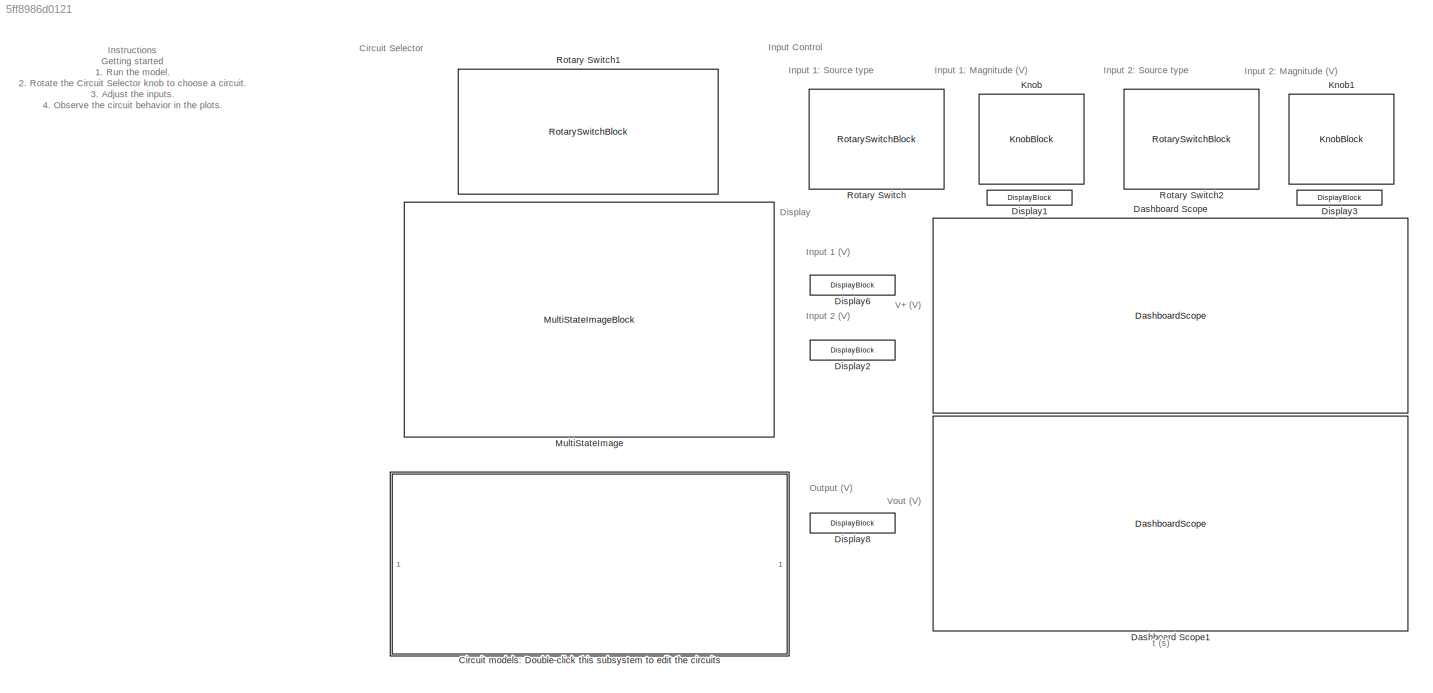
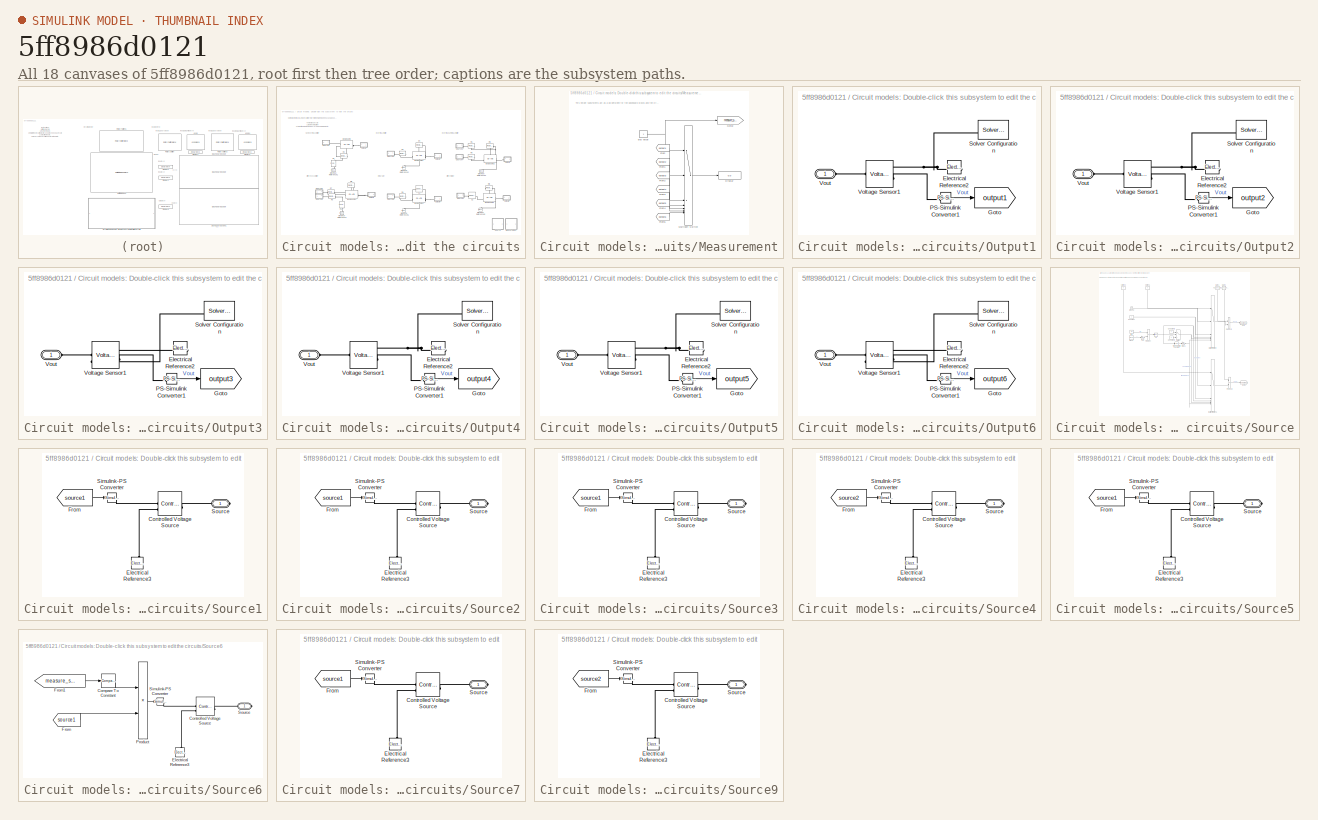
[diagram: thumbnail index - all 18 canvases of the model, root first then tree order]
MODEL slx_5ff8986d0121
KIND model
CONFIG AbsTol = auto
CONFIG EnableMultiTasking = off
CONFIG FixedStep = auto
CONFIG MaxStep = 1e-5
CONFIG MinStep = auto
CONFIG RelTol = 1e-3
CONFIG SampleTimeConstraint = Unconstrained
CONFIG SolverName = VariableStepAuto
CONFIG StartTime = 0.0
CONFIG StopTime = inf
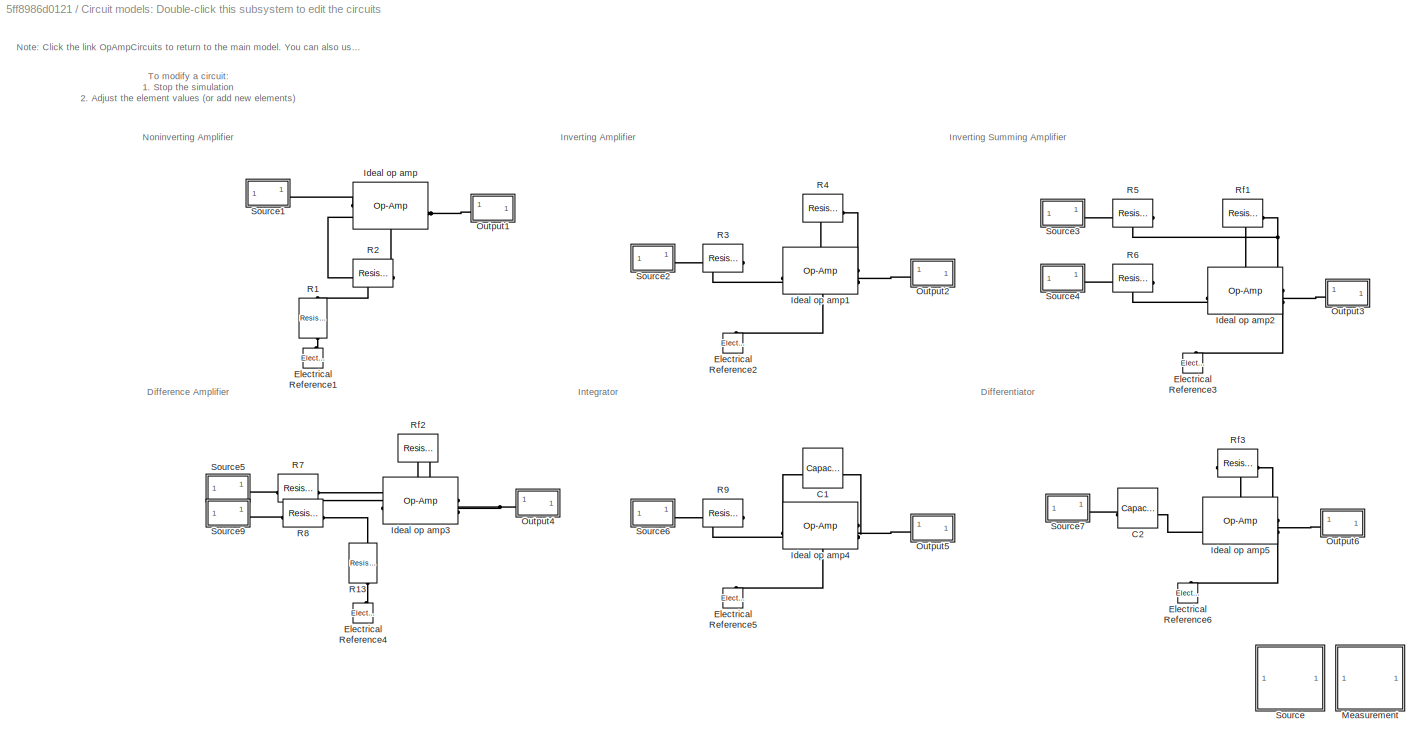
BLOCK [SubSystem] Circuit models: Double-click this subsystem to edit the circuits
  NameLocation = top
BLOCK [Reference] Circuit models: Double-click this subsystem to edit the circuits/C1  REF=fl_lib/Electrical/Electrical Elements/Capacitor
  AttributesFormatString = %<c> %<c_unit>
  NameLocation = top
  SourceBlock = fl_lib/Electrical/Electrical Elements/Capacitor
  SourceType = Capacitor
BLOCK [Reference] Circuit models: Double-click this subsystem to edit the circuits/C2  REF=fl_lib/Electrical/Electrical Elements/Capacitor
  AttributesFormatString = %<c> %<c_unit>
  NameLocation = top
  SourceBlock = fl_lib/Electrical/Electrical Elements/Capacitor
  SourceType = Capacitor
BLOCK [Reference] Circuit models: Double-click this subsystem to edit the circuits/Electrical Reference1  REF=fl_lib/Electrical/Electrical Elements/Electrical Reference
  NameLocation = right
  SourceBlock = fl_lib/Electrical/Electrical Elements/Electrical Reference
  SourceType = Electrical Reference
BLOCK [Reference] Circuit models: Double-click this subsystem to edit the circuits/Electrical Reference2  REF=fl_lib/Electrical/Electrical Elements/Electrical Reference
  NameLocation = right
  SourceBlock = fl_lib/Electrical/Electrical Elements/Electrical Reference
  SourceType = Electrical Reference
BLOCK [Reference] Circuit models: Double-click this subsystem to edit the circuits/Electrical Reference3  REF=fl_lib/Electrical/Electrical Elements/Electrical Reference
  NameLocation = right
  SourceBlock = fl_lib/Electrical/Electrical Elements/Electrical Reference
  SourceType = Electrical Reference
BLOCK [Reference] Circuit models: Double-click this subsystem to edit the circuits/Electrical Reference4  REF=fl_lib/Electrical/Electrical Elements/Electrical Reference
  NameLocation = right
  SourceBlock = fl_lib/Electrical/Electrical Elements/Electrical Reference
  SourceType = Electrical Reference
BLOCK [Reference] Circuit models: Double-click this subsystem to edit the circuits/Electrical Reference5  REF=fl_lib/Electrical/Electrical Elements/Electrical Reference
  NameLocation = right
  SourceBlock = fl_lib/Electrical/Electrical Elements/Electrical Reference
  SourceType = Electrical Reference
BLOCK [Reference] Circuit models: Double-click this subsystem to edit the circuits/Electrical Reference6  REF=fl_lib/Electrical/Electrical Elements/Electrical Reference
  NameLocation = right
  SourceBlock = fl_lib/Electrical/Electrical Elements/Electrical Reference
  SourceType = Electrical Reference
BLOCK [Reference] Circuit models: Double-click this subsystem to edit the circuits/Ideal op amp  REF=fl_lib/Electrical/Electrical Elements/Op-Amp
  SourceBlock = fl_lib/Electrical/Electrical Elements/Op-Amp
  SourceType = Op-Amp
BLOCK [Reference] Circuit models: Double-click this subsystem to edit the circuits/Ideal op amp1  REF=fl_lib/Electrical/Electrical Elements/Op-Amp
  SourceBlock = fl_lib/Electrical/Electrical Elements/Op-Amp
  SourceType = Op-Amp
BLOCK [Reference] Circuit models: Double-click this subsystem to edit the circuits/Ideal op amp2  REF=fl_lib/Electrical/Electrical Elements/Op-Amp
  SourceBlock = fl_lib/Electrical/Electrical Elements/Op-Amp
  SourceType = Op-Amp
BLOCK [Reference] Circuit models: Double-click this subsystem to edit the circuits/Ideal op amp3  REF=fl_lib/Electrical/Electrical Elements/Op-Amp
  SourceBlock = fl_lib/Electrical/Electrical Elements/Op-Amp
  SourceType = Op-Amp
BLOCK [Reference] Circuit models: Double-click this subsystem to edit the circuits/Ideal op amp4  REF=fl_lib/Electrical/Electrical Elements/Op-Amp
  SourceBlock = fl_lib/Electrical/Electrical Elements/Op-Amp
  SourceType = Op-Amp
BLOCK [Reference] Circuit models: Double-click this subsystem to edit the circuits/Ideal op amp5  REF=fl_lib/Electrical/Electrical Elements/Op-Amp
  SourceBlock = fl_lib/Electrical/Electrical Elements/Op-Amp
  SourceType = Op-Amp
BLOCK [SubSystem] Circuit models: Double-click this subsystem to edit the circuits/Measurement
BLOCK [Display] Circuit models: Double-click this subsystem to edit the circuits/Measurement/Display
  Decimation = 1
BLOCK [From] Circuit models: Double-click this subsystem to edit the circuits/Measurement/From
  GotoTag = output1
  TagVisibility = global
BLOCK [From] Circuit models: Double-click this subsystem to edit the circuits/Measurement/From1
  GotoTag = output2
  TagVisibility = global
BLOCK [From] Circuit models: Double-click this subsystem to edit the circuits/Measurement/From2
  GotoTag = output3
  TagVisibility = global
BLOCK [From] Circuit models: Double-click this subsystem to edit the circuits/Measurement/From3
  GotoTag = output4
  TagVisibility = global
BLOCK [From] Circuit models: Double-click this subsystem to edit the circuits/Measurement/From4
  GotoTag = output5
  TagVisibility = global
BLOCK [From] Circuit models: Double-click this subsystem to edit the circuits/Measurement/From5
  GotoTag = output6
  TagVisibility = global
BLOCK [Goto] Circuit models: Double-click this subsystem to edit the circuits/Measurement/Goto2
  GotoTag = measure_switch
  TagVisibility = global
BLOCK [MultiPortSwitch] Circuit models: Double-click this subsystem to edit the circuits/Measurement/Multiport Switch
  InputSameDT = off
  Inputs = 6
  SaturateOnIntegerOverflow = off
BLOCK [Constant] Circuit models: Double-click this subsystem to edit the circuits/Measurement/dial value
BLOCK [SubSystem] Circuit models: Double-click this subsystem to edit the circuits/Output1
BLOCK [Reference] Circuit models: Double-click this subsystem to edit the circuits/Output1/Electrical Reference2  REF=fl_lib/Electrical/Electrical Elements/Electrical Reference
  NameLocation = top
  SourceBlock = fl_lib/Electrical/Electrical Elements/Electrical Reference
  SourceType = Electrical Reference
BLOCK [Goto] Circuit models: Double-click this subsystem to edit the circuits/Output1/Goto
  GotoTag = output1
  TagVisibility = global
BLOCK [Reference] Circuit models: Double-click this subsystem to edit the circuits/Output1/PS-Simulink Converter1  REF=nesl_utility/PS-Simulink
Converter
  SourceBlock = nesl_utility/PS-Simulink\nConverter
  SourceType = PS-Simulink\nConverter
BLOCK [Reference] Circuit models: Double-click this subsystem to edit the circuits/Output1/Solver Configuration  REF=nesl_utility/Solver
Configuration
  NameLocation = top
  SourceBlock = nesl_utility/Solver\nConfiguration
  SourceType = Solver\nConfiguration
BLOCK [Reference] Circuit models: Double-click this subsystem to edit the circuits/Output1/Voltage Sensor1  REF=fl_lib/Electrical/Electrical Sensors/Voltage Sensor
  NameLocation = top
  SourceBlock = fl_lib/Electrical/Electrical Sensors/Voltage Sensor
  SourceType = Voltage Sensor
BLOCK [PMIOPort] Circuit models: Double-click this subsystem to edit the circuits/Output1/Vout
  Side = Left
BLOCK [SubSystem] Circuit models: Double-click this subsystem to edit the circuits/Output2
BLOCK [Reference] Circuit models: Double-click this subsystem to edit the circuits/Output2/Electrical Reference2  REF=fl_lib/Electrical/Electrical Elements/Electrical Reference
  NameLocation = top
  SourceBlock = fl_lib/Electrical/Electrical Elements/Electrical Reference
  SourceType = Electrical Reference
BLOCK [Goto] Circuit models: Double-click this subsystem to edit the circuits/Output2/Goto
  GotoTag = output2
  TagVisibility = global
BLOCK [Reference] Circuit models: Double-click this subsystem to edit the circuits/Output2/PS-Simulink Converter1  REF=nesl_utility/PS-Simulink
Converter
  SourceBlock = nesl_utility/PS-Simulink\nConverter
  SourceType = PS-Simulink\nConverter
BLOCK [Reference] Circuit models: Double-click this subsystem to edit the circuits/Output2/Solver Configuration  REF=nesl_utility/Solver
Configuration
  NameLocation = top
  SourceBlock = nesl_utility/Solver\nConfiguration
  SourceType = Solver\nConfiguration
BLOCK [Reference] Circuit models: Double-click this subsystem to edit the circuits/Output2/Voltage Sensor1  REF=fl_lib/Electrical/Electrical Sensors/Voltage Sensor
  NameLocation = top
  SourceBlock = fl_lib/Electrical/Electrical Sensors/Voltage Sensor
  SourceType = Voltage Sensor
BLOCK [PMIOPort] Circuit models: Double-click this subsystem to edit the circuits/Output2/Vout
  Side = Left
BLOCK [SubSystem] Circuit models: Double-click this subsystem to edit the circuits/Output3
BLOCK [Reference] Circuit models: Double-click this subsystem to edit the circuits/Output3/Electrical Reference2  REF=fl_lib/Electrical/Electrical Elements/Electrical Reference
  NameLocation = top
  SourceBlock = fl_lib/Electrical/Electrical Elements/Electrical Reference
  SourceType = Electrical Reference
BLOCK [Goto] Circuit models: Double-click this subsystem to edit the circuits/Output3/Goto
  GotoTag = output3
  TagVisibility = global
BLOCK [Reference] Circuit models: Double-click this subsystem to edit the circuits/Output3/PS-Simulink Converter1  REF=nesl_utility/PS-Simulink
Converter
  SourceBlock = nesl_utility/PS-Simulink\nConverter
  SourceType = PS-Simulink\nConverter
BLOCK [Reference] Circuit models: Double-click this subsystem to edit the circuits/Output3/Solver Configuration  REF=nesl_utility/Solver
Configuration
  NameLocation = top
  SourceBlock = nesl_utility/Solver\nConfiguration
  SourceType = Solver\nConfiguration
BLOCK [Reference] Circuit models: Double-click this subsystem to edit the circuits/Output3/Voltage Sensor1  REF=fl_lib/Electrical/Electrical Sensors/Voltage Sensor
  NameLocation = top
  SourceBlock = fl_lib/Electrical/Electrical Sensors/Voltage Sensor
  SourceType = Voltage Sensor
BLOCK [PMIOPort] Circuit models: Double-click this subsystem to edit the circuits/Output3/Vout
  Side = Left
BLOCK [SubSystem] Circuit models: Double-click this subsystem to edit the circuits/Output4
BLOCK [Reference] Circuit models: Double-click this subsystem to edit the circuits/Output4/Electrical Reference2  REF=fl_lib/Electrical/Electrical Elements/Electrical Reference
  NameLocation = top
  SourceBlock = fl_lib/Electrical/Electrical Elements/Electrical Reference
  SourceType = Electrical Reference
BLOCK [Goto] Circuit models: Double-click this subsystem to edit the circuits/Output4/Goto
  GotoTag = output4
  TagVisibility = global
BLOCK [Reference] Circuit models: Double-click this subsystem to edit the circuits/Output4/PS-Simulink Converter1  REF=nesl_utility/PS-Simulink
Converter
  SourceBlock = nesl_utility/PS-Simulink\nConverter
  SourceType = PS-Simulink\nConverter
BLOCK [Reference] Circuit models: Double-click this subsystem to edit the circuits/Output4/Solver Configuration  REF=nesl_utility/Solver
Configuration
  NameLocation = top
  SourceBlock = nesl_utility/Solver\nConfiguration
  SourceType = Solver\nConfiguration
BLOCK [Reference] Circuit models: Double-click this subsystem to edit the circuits/Output4/Voltage Sensor1  REF=fl_lib/Electrical/Electrical Sensors/Voltage Sensor
  NameLocation = top
  SourceBlock = fl_lib/Electrical/Electrical Sensors/Voltage Sensor
  SourceType = Voltage Sensor
BLOCK [PMIOPort] Circuit models: Double-click this subsystem to edit the circuits/Output4/Vout
  Side = Left
BLOCK [SubSystem] Circuit models: Double-click this subsystem to edit the circuits/Output5
BLOCK [Reference] Circuit models: Double-click this subsystem to edit the circuits/Output5/Electrical Reference2  REF=fl_lib/Electrical/Electrical Elements/Electrical Reference
  NameLocation = top
  SourceBlock = fl_lib/Electrical/Electrical Elements/Electrical Reference
  SourceType = Electrical Reference
BLOCK [Goto] Circuit models: Double-click this subsystem to edit the circuits/Output5/Goto
  GotoTag = output5
  TagVisibility = global
BLOCK [Reference] Circuit models: Double-click this subsystem to edit the circuits/Output5/PS-Simulink Converter1  REF=nesl_utility/PS-Simulink
Converter
  SourceBlock = nesl_utility/PS-Simulink\nConverter
  SourceType = PS-Simulink\nConverter
BLOCK [Reference] Circuit models: Double-click this subsystem to edit the circuits/Output5/Solver Configuration  REF=nesl_utility/Solver
Configuration
  NameLocation = top
  SourceBlock = nesl_utility/Solver\nConfiguration
  SourceType = Solver\nConfiguration
BLOCK [Reference] Circuit models: Double-click this subsystem to edit the circuits/Output5/Voltage Sensor1  REF=fl_lib/Electrical/Electrical Sensors/Voltage Sensor
  NameLocation = top
  SourceBlock = fl_lib/Electrical/Electrical Sensors/Voltage Sensor
  SourceType = Voltage Sensor
BLOCK [PMIOPort] Circuit models: Double-click this subsystem to edit the circuits/Output5/Vout
  Side = Left
BLOCK [SubSystem] Circuit models: Double-click this subsystem to edit the circuits/Output6
BLOCK [Reference] Circuit models: Double-click this subsystem to edit the circuits/Output6/Electrical Reference2  REF=fl_lib/Electrical/Electrical Elements/Electrical Reference
  NameLocation = top
  SourceBlock = fl_lib/Electrical/Electrical Elements/Electrical Reference
  SourceType = Electrical Reference
BLOCK [Goto] Circuit models: Double-click this subsystem to edit the circuits/Output6/Goto
  GotoTag = output6
  TagVisibility = global
BLOCK [Reference] Circuit models: Double-click this subsystem to edit the circuits/Output6/PS-Simulink Converter1  REF=nesl_utility/PS-Simulink
Converter
  SourceBlock = nesl_utility/PS-Simulink\nConverter
  SourceType = PS-Simulink\nConverter
BLOCK [Reference] Circuit models: Double-click this subsystem to edit the circuits/Output6/Solver Configuration  REF=nesl_utility/Solver
Configuration
  NameLocation = top
  SourceBlock = nesl_utility/Solver\nConfiguration
  SourceType = Solver\nConfiguration
BLOCK [Reference] Circuit models: Double-click this subsystem to edit the circuits/Output6/Voltage Sensor1  REF=fl_lib/Electrical/Electrical Sensors/Voltage Sensor
  NameLocation = top
  SourceBlock = fl_lib/Electrical/Electrical Sensors/Voltage Sensor
  SourceType = Voltage Sensor
BLOCK [PMIOPort] Circuit models: Double-click this subsystem to edit the circuits/Output6/Vout
  Side = Left
BLOCK [Reference] Circuit models: Double-click this subsystem to edit the circuits/R1  REF=fl_lib/Electrical/Electrical Elements/Resistor
  AttributesFormatString = %<R> %<R_unit>
  NameLocation = left
  SourceBlock = fl_lib/Electrical/Electrical Elements/Resistor
  SourceType = Resistor
BLOCK [Reference] Circuit models: Double-click this subsystem to edit the circuits/R13  REF=fl_lib/Electrical/Electrical Elements/Resistor
  AttributesFormatString = %<R> %<R_unit>
  NameLocation = right
  SourceBlock = fl_lib/Electrical/Electrical Elements/Resistor
  SourceType = Resistor
BLOCK [Reference] Circuit models: Double-click this subsystem to edit the circuits/R2  REF=fl_lib/Electrical/Electrical Elements/Resistor
  AttributesFormatString = %<R> %<R_unit>
  SourceBlock = fl_lib/Electrical/Electrical Elements/Resistor
  SourceType = Resistor
BLOCK [Reference] Circuit models: Double-click this subsystem to edit the circuits/R3  REF=fl_lib/Electrical/Electrical Elements/Resistor
  AttributesFormatString = %<R> %<R_unit>
  NameLocation = top
  SourceBlock = fl_lib/Electrical/Electrical Elements/Resistor
  SourceType = Resistor
BLOCK [Reference] Circuit models: Double-click this subsystem to edit the circuits/R4  REF=fl_lib/Electrical/Electrical Elements/Resistor
  AttributesFormatString = %<R> %<R_unit>
  NameLocation = top
  SourceBlock = fl_lib/Electrical/Electrical Elements/Resistor
  SourceType = Resistor
BLOCK [Reference] Circuit models: Double-click this subsystem to edit the circuits/R5  REF=fl_lib/Electrical/Electrical Elements/Resistor
  AttributesFormatString = %<R> %<R_unit>
  NameLocation = top
  SourceBlock = fl_lib/Electrical/Electrical Elements/Resistor
  SourceType = Resistor
BLOCK [Reference] Circuit models: Double-click this subsystem to edit the circuits/R6  REF=fl_lib/Electrical/Electrical Elements/Resistor
  AttributesFormatString = %<R> %<R_unit>
  SourceBlock = fl_lib/Electrical/Electrical Elements/Resistor
  SourceType = Resistor
BLOCK [Reference] Circuit models: Double-click this subsystem to edit the circuits/R7  REF=fl_lib/Electrical/Electrical Elements/Resistor
  AttributesFormatString = %<R> %<R_unit>
  NameLocation = top
  SourceBlock = fl_lib/Electrical/Electrical Elements/Resistor
  SourceType = Resistor
BLOCK [Reference] Circuit models: Double-click this subsystem to edit the circuits/R8  REF=fl_lib/Electrical/Electrical Elements/Resistor
  AttributesFormatString = %<R> %<R_unit>
  SourceBlock = fl_lib/Electrical/Electrical Elements/Resistor
  SourceType = Resistor
BLOCK [Reference] Circuit models: Double-click this subsystem to edit the circuits/R9  REF=fl_lib/Electrical/Electrical Elements/Resistor
  AttributesFormatString = %<R> %<R_unit>
  NameLocation = top
  SourceBlock = fl_lib/Electrical/Electrical Elements/Resistor
  SourceType = Resistor
BLOCK [Reference] Circuit models: Double-click this subsystem to edit the circuits/Rf1  REF=fl_lib/Electrical/Electrical Elements/Resistor
  AttributesFormatString = %<R> %<R_unit>
  NameLocation = top
  SourceBlock = fl_lib/Electrical/Electrical Elements/Resistor
  SourceType = Resistor
BLOCK [Reference] Circuit models: Double-click this subsystem to edit the circuits/Rf2  REF=fl_lib/Electrical/Electrical Elements/Resistor
  AttributesFormatString = %<R> %<R_unit>
  NameLocation = top
  SourceBlock = fl_lib/Electrical/Electrical Elements/Resistor
  SourceType = Resistor
BLOCK [Reference] Circuit models: Double-click this subsystem to edit the circuits/Rf3  REF=fl_lib/Electrical/Electrical Elements/Resistor
  AttributesFormatString = %<R> %<R_unit>
  NameLocation = top
  SourceBlock = fl_lib/Electrical/Electrical Elements/Resistor
  SourceType = Resistor
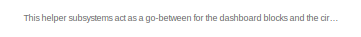
[diagram: Circuit models: Double-click this subsystem to edit the circuits/Source - part 1/3, top left region]
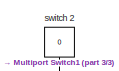
[diagram: Circuit models: Double-click this subsystem to edit the circuits/Source - part 2/3, top left region]
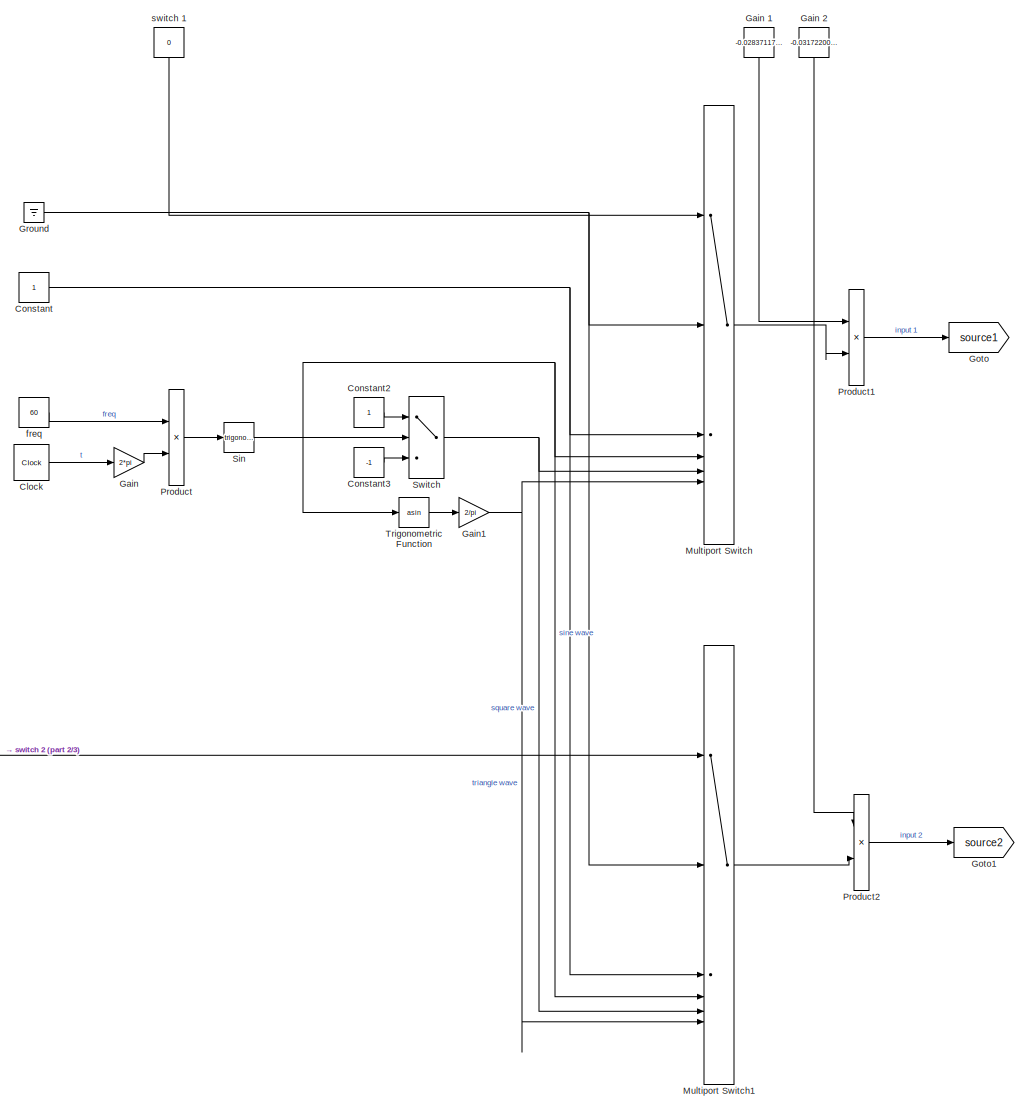
[diagram: Circuit models: Double-click this subsystem to edit the circuits/Source - part 3/3, most of the canvas]
BLOCK [SubSystem] Circuit models: Double-click this subsystem to edit the circuits/Source
BLOCK [Clock] Circuit models: Double-click this subsystem to edit the circuits/Source/Clock
BLOCK [Constant] Circuit models: Double-click this subsystem to edit the circuits/Source/Constant
BLOCK [Constant] Circuit models: Double-click this subsystem to edit the circuits/Source/Constant2
  SampleTime = 0
BLOCK [Constant] Circuit models: Double-click this subsystem to edit the circuits/Source/Constant3
  SampleTime = 0
  Value = -1
BLOCK [Gain] Circuit models: Double-click this subsystem to edit the circuits/Source/Gain
  Gain = 2*pi
BLOCK [Constant] Circuit models: Double-click this subsystem to edit the circuits/Source/Gain 1
  NameLocation = top
  Value = -0.02837117513020848
BLOCK [Constant] Circuit models: Double-click this subsystem to edit the circuits/Source/Gain 2
  NameLocation = top
  Value = -0.03172200520833313
BLOCK [Gain] Circuit models: Double-click this subsystem to edit the circuits/Source/Gain1
  Gain = 2/pi
BLOCK [Goto] Circuit models: Double-click this subsystem to edit the circuits/Source/Goto
  GotoTag = source1
  TagVisibility = global
BLOCK [Goto] Circuit models: Double-click this subsystem to edit the circuits/Source/Goto1
  GotoTag = source2
  TagVisibility = global
BLOCK [Ground] Circuit models: Double-click this subsystem to edit the circuits/Source/Ground
BLOCK [MultiPortSwitch] Circuit models: Double-click this subsystem to edit the circuits/Source/Multiport Switch
  DataPortOrder = Zero-based contiguous
  InputSameDT = off
  Inputs = 5
  SaturateOnIntegerOverflow = off
  zeroidx = on
BLOCK [MultiPortSwitch] Circuit models: Double-click this subsystem to edit the circuits/Source/Multiport Switch1
  DataPortOrder = Zero-based contiguous
  InputSameDT = off
  Inputs = 5
  SaturateOnIntegerOverflow = off
  zeroidx = on
BLOCK [Product] Circuit models: Double-click this subsystem to edit the circuits/Source/Product
BLOCK [Product] Circuit models: Double-click this subsystem to edit the circuits/Source/Product1
BLOCK [Product] Circuit models: Double-click this subsystem to edit the circuits/Source/Product2
BLOCK [Trigonometry] Circuit models: Double-click this subsystem to edit the circuits/Source/Sin
BLOCK [Switch] Circuit models: Double-click this subsystem to edit the circuits/Source/Switch
  Criteria = u2 > Threshold
  InputSameDT = off
  SaturateOnIntegerOverflow = off
BLOCK [Trigonometry] Circuit models: Double-click this subsystem to edit the circuits/Source/Trigonometric Function
  Operator = asin
BLOCK [Constant] Circuit models: Double-click this subsystem to edit the circuits/Source/freq
  NameLocation = left
  SampleTime = 0
  Value = 60
BLOCK [Constant] Circuit models: Double-click this subsystem to edit the circuits/Source/switch 1
  NameLocation = top
  Value = 0
BLOCK [Constant] Circuit models: Double-click this subsystem to edit the circuits/Source/switch 2
  NameLocation = top
  Value = 0
BLOCK [SubSystem] Circuit models: Double-click this subsystem to edit the circuits/Source1
BLOCK [Reference] Circuit models: Double-click this subsystem to edit the circuits/Source1/Controlled Voltage Source  REF=fl_lib/Electrical/Electrical Sources/Controlled Voltage
Source
  NameLocation = top
  SourceBlock = fl_lib/Electrical/Electrical Sources/Controlled Voltage\nSource
  SourceType = Controlled Voltage\nSource
BLOCK [Reference] Circuit models: Double-click this subsystem to edit the circuits/Source1/Electrical Reference3  REF=fl_lib/Electrical/Electrical Elements/Electrical Reference
  NameLocation = right
  SourceBlock = fl_lib/Electrical/Electrical Elements/Electrical Reference
  SourceType = Electrical Reference
BLOCK [From] Circuit models: Double-click this subsystem to edit the circuits/Source1/From
  GotoTag = source1
  TagVisibility = global
BLOCK [Reference] Circuit models: Double-click this subsystem to edit the circuits/Source1/Simulink-PS Converter  REF=nesl_utility/Simulink-PS
Converter
  SourceBlock = nesl_utility/Simulink-PS\nConverter
  SourceType = Simulink-PS\nConverter
BLOCK [PMIOPort] Circuit models: Double-click this subsystem to edit the circuits/Source1/Source
  Side = Right
BLOCK [SubSystem] Circuit models: Double-click this subsystem to edit the circuits/Source2
BLOCK [Reference] Circuit models: Double-click this subsystem to edit the circuits/Source2/Controlled Voltage Source  REF=fl_lib/Electrical/Electrical Sources/Controlled Voltage
Source
  NameLocation = top
  SourceBlock = fl_lib/Electrical/Electrical Sources/Controlled Voltage\nSource
  SourceType = Controlled Voltage\nSource
BLOCK [Reference] Circuit models: Double-click this subsystem to edit the circuits/Source2/Electrical Reference3  REF=fl_lib/Electrical/Electrical Elements/Electrical Reference
  NameLocation = right
  SourceBlock = fl_lib/Electrical/Electrical Elements/Electrical Reference
  SourceType = Electrical Reference
BLOCK [From] Circuit models: Double-click this subsystem to edit the circuits/Source2/From
  GotoTag = source1
  TagVisibility = global
BLOCK [Reference] Circuit models: Double-click this subsystem to edit the circuits/Source2/Simulink-PS Converter  REF=nesl_utility/Simulink-PS
Converter
  SourceBlock = nesl_utility/Simulink-PS\nConverter
  SourceType = Simulink-PS\nConverter
BLOCK [PMIOPort] Circuit models: Double-click this subsystem to edit the circuits/Source2/Source
  Side = Right
BLOCK [SubSystem] Circuit models: Double-click this subsystem to edit the circuits/Source3
BLOCK [Reference] Circuit models: Double-click this subsystem to edit the circuits/Source3/Controlled Voltage Source  REF=fl_lib/Electrical/Electrical Sources/Controlled Voltage
Source
  NameLocation = top
  SourceBlock = fl_lib/Electrical/Electrical Sources/Controlled Voltage\nSource
  SourceType = Controlled Voltage\nSource
BLOCK [Reference] Circuit models: Double-click this subsystem to edit the circuits/Source3/Electrical Reference3  REF=fl_lib/Electrical/Electrical Elements/Electrical Reference
  NameLocation = right
  SourceBlock = fl_lib/Electrical/Electrical Elements/Electrical Reference
  SourceType = Electrical Reference
BLOCK [From] Circuit models: Double-click this subsystem to edit the circuits/Source3/From
  GotoTag = source1
  TagVisibility = global
BLOCK [Reference] Circuit models: Double-click this subsystem to edit the circuits/Source3/Simulink-PS Converter  REF=nesl_utility/Simulink-PS
Converter
  SourceBlock = nesl_utility/Simulink-PS\nConverter
  SourceType = Simulink-PS\nConverter
BLOCK [PMIOPort] Circuit models: Double-click this subsystem to edit the circuits/Source3/Source
  Side = Right
BLOCK [SubSystem] Circuit models: Double-click this subsystem to edit the circuits/Source4
BLOCK [Reference] Circuit models: Double-click this subsystem to edit the circuits/Source4/Controlled Voltage Source  REF=fl_lib/Electrical/Electrical Sources/Controlled Voltage
Source
  NameLocation = top
  SourceBlock = fl_lib/Electrical/Electrical Sources/Controlled Voltage\nSource
  SourceType = Controlled Voltage\nSource
BLOCK [Reference] Circuit models: Double-click this subsystem to edit the circuits/Source4/Electrical Reference3  REF=fl_lib/Electrical/Electrical Elements/Electrical Reference
  NameLocation = right
  SourceBlock = fl_lib/Electrical/Electrical Elements/Electrical Reference
  SourceType = Electrical Reference
BLOCK [From] Circuit models: Double-click this subsystem to edit the circuits/Source4/From
  GotoTag = source2
  TagVisibility = global
BLOCK [Reference] Circuit models: Double-click this subsystem to edit the circuits/Source4/Simulink-PS Converter  REF=nesl_utility/Simulink-PS
Converter
  SourceBlock = nesl_utility/Simulink-PS\nConverter
  SourceType = Simulink-PS\nConverter
BLOCK [PMIOPort] Circuit models: Double-click this subsystem to edit the circuits/Source4/Source
  Side = Right
BLOCK [SubSystem] Circuit models: Double-click this subsystem to edit the circuits/Source5
BLOCK [Reference] Circuit models: Double-click this subsystem to edit the circuits/Source5/Controlled Voltage Source  REF=fl_lib/Electrical/Electrical Sources/Controlled Voltage
Source
  NameLocation = top
  SourceBlock = fl_lib/Electrical/Electrical Sources/Controlled Voltage\nSource
  SourceType = Controlled Voltage\nSource
BLOCK [Reference] Circuit models: Double-click this subsystem to edit the circuits/Source5/Electrical Reference3  REF=fl_lib/Electrical/Electrical Elements/Electrical Reference
  NameLocation = right
  SourceBlock = fl_lib/Electrical/Electrical Elements/Electrical Reference
  SourceType = Electrical Reference
BLOCK [From] Circuit models: Double-click this subsystem to edit the circuits/Source5/From
  GotoTag = source1
  TagVisibility = global
BLOCK [Reference] Circuit models: Double-click this subsystem to edit the circuits/Source5/Simulink-PS Converter  REF=nesl_utility/Simulink-PS
Converter
  SourceBlock = nesl_utility/Simulink-PS\nConverter
  SourceType = Simulink-PS\nConverter
BLOCK [PMIOPort] Circuit models: Double-click this subsystem to edit the circuits/Source5/Source
  Side = Right
BLOCK [SubSystem] Circuit models: Double-click this subsystem to edit the circuits/Source6
BLOCK [Reference] Circuit models: Double-click this subsystem to edit the circuits/Source6/Compare To Constant  REF=simulink/Logic and Bit
Operations/Compare
To Constant
  SourceBlock = simulink/Logic and Bit\nOperations/Compare\nTo Constant
  SourceType = Compare To Constant
BLOCK [Reference] Circuit models: Double-click this subsystem to edit the circuits/Source6/Controlled Voltage Source  REF=fl_lib/Electrical/Electrical Sources/Controlled Voltage
Source
  NameLocation = top
  SourceBlock = fl_lib/Electrical/Electrical Sources/Controlled Voltage\nSource
  SourceType = Controlled Voltage\nSource
BLOCK [Reference] Circuit models: Double-click this subsystem to edit the circuits/Source6/Electrical Reference3  REF=fl_lib/Electrical/Electrical Elements/Electrical Reference
  NameLocation = right
  SourceBlock = fl_lib/Electrical/Electrical Elements/Electrical Reference
  SourceType = Electrical Reference
BLOCK [From] Circuit models: Double-click this subsystem to edit the circuits/Source6/From
  GotoTag = source1
  TagVisibility = global
BLOCK [From] Circuit models: Double-click this subsystem to edit the circuits/Source6/From1
  GotoTag = measure_switch
  TagVisibility = global
BLOCK [Product] Circuit models: Double-click this subsystem to edit the circuits/Source6/Product
BLOCK [Reference] Circuit models: Double-click this subsystem to edit the circuits/Source6/Simulink-PS Converter  REF=nesl_utility/Simulink-PS
Converter
  SourceBlock = nesl_utility/Simulink-PS\nConverter
  SourceType = Simulink-PS\nConverter
BLOCK [PMIOPort] Circuit models: Double-click this subsystem to edit the circuits/Source6/Source
  Side = Right
BLOCK [SubSystem] Circuit models: Double-click this subsystem to edit the circuits/Source7
BLOCK [Reference] Circuit models: Double-click this subsystem to edit the circuits/Source7/Controlled Voltage Source  REF=fl_lib/Electrical/Electrical Sources/Controlled Voltage
Source
  NameLocation = top
  SourceBlock = fl_lib/Electrical/Electrical Sources/Controlled Voltage\nSource
  SourceType = Controlled Voltage\nSource
BLOCK [Reference] Circuit models: Double-click this subsystem to edit the circuits/Source7/Electrical Reference3  REF=fl_lib/Electrical/Electrical Elements/Electrical Reference
  NameLocation = right
  SourceBlock = fl_lib/Electrical/Electrical Elements/Electrical Reference
  SourceType = Electrical Reference
BLOCK [From] Circuit models: Double-click this subsystem to edit the circuits/Source7/From
  GotoTag = source1
  TagVisibility = global
BLOCK [Reference] Circuit models: Double-click this subsystem to edit the circuits/Source7/Simulink-PS Converter  REF=nesl_utility/Simulink-PS
Converter
  SourceBlock = nesl_utility/Simulink-PS\nConverter
  SourceType = Simulink-PS\nConverter
BLOCK [PMIOPort] Circuit models: Double-click this subsystem to edit the circuits/Source7/Source
  Side = Right
BLOCK [SubSystem] Circuit models: Double-click this subsystem to edit the circuits/Source9
BLOCK [Reference] Circuit models: Double-click this subsystem to edit the circuits/Source9/Controlled Voltage Source  REF=fl_lib/Electrical/Electrical Sources/Controlled Voltage
Source
  NameLocation = top
  SourceBlock = fl_lib/Electrical/Electrical Sources/Controlled Voltage\nSource
  SourceType = Controlled Voltage\nSource
BLOCK [Reference] Circuit models: Double-click this subsystem to edit the circuits/Source9/Electrical Reference3  REF=fl_lib/Electrical/Electrical Elements/Electrical Reference
  NameLocation = right
  SourceBlock = fl_lib/Electrical/Electrical Elements/Electrical Reference
  SourceType = Electrical Reference
BLOCK [From] Circuit models: Double-click this subsystem to edit the circuits/Source9/From
  GotoTag = source2
  TagVisibility = global
BLOCK [Reference] Circuit models: Double-click this subsystem to edit the circuits/Source9/Simulink-PS Converter  REF=nesl_utility/Simulink-PS
Converter
  SourceBlock = nesl_utility/Simulink-PS\nConverter
  SourceType = Simulink-PS\nConverter
BLOCK [PMIOPort] Circuit models: Double-click this subsystem to edit the circuits/Source9/Source
  Side = Right
BLOCK [DashboardScope] Dashboard Scope
  ScaleAtStop = off
  TimeSpan = 0.10000000000000001
  Ymax = 11
  Ymin = -11
BLOCK [DashboardScope] Dashboard Scope1
  ScaleAtStop = off
  TimeSpan = 0.10000000000000001
  Ymax = 11
  Ymin = -11
BLOCK [DisplayBlock] Display1
  Alignment = Right
  Format = Custom
  FormatString = %0.4f
  LabelPosition = Hide
  Transparency = 1
BLOCK [DisplayBlock] Display2
  Alignment = Right
  Format = Custom
  FormatString = %0.4f
  LabelPosition = Hide
  Transparency = 1
BLOCK [DisplayBlock] Display3
  Alignment = Right
  Format = Custom
  FormatString = %0.4f
  LabelPosition = Hide
  Transparency = 1
BLOCK [DisplayBlock] Display6
  Alignment = Right
  Format = Custom
  FormatString = %0.4f
  LabelPosition = Hide
  Transparency = 1
BLOCK [DisplayBlock] Display8
  Alignment = Right
  Format = Custom
  FormatString = %0.4f
  LabelPosition = Hide
  Transparency = 1
BLOCK [KnobBlock] Knob
  LabelPosition = Hide
  ScaleMax = 4
  ScaleMin = -4
  TickInterval = 2
BLOCK [KnobBlock] Knob1
  LabelPosition = Hide
  ScaleMax = 4
  ScaleMin = -4
  TickInterval = 2
BLOCK [MultiStateImageBlock] MultiStateImage
  LabelPosition = Hide
BLOCK [RotarySwitchBlock] Rotary Switch
  LabelPosition = Hide
BLOCK [RotarySwitchBlock] Rotary Switch1
  LabelPosition = Hide
  NameLocation = top
BLOCK [RotarySwitchBlock] Rotary Switch2
  LabelPosition = Hide
ANNOTATION (root): Instructions Getting started 1. Run the model. 2. Rotate the Circuit Selector knob to choose a circuit. 3. Adjust the inputs. 4. Observe the circuit behavior in the plots. 5. Double-click the circuit models subsystem. Inside, you can edit the the element values. Analysis For each of the six op amp circuits, perform the following. 1. Adjust the input(s) to the circuit randomly. How does the output ...<+450ch>
ANNOTATION (root): Circuit Selector
ANNOTATION (root): Display
ANNOTATION (root): Input 1 (V)
ANNOTATION (root): Input 1: Magnitude (V)
ANNOTATION (root): Input 1: Source type
ANNOTATION (root): Input 2 (V)
ANNOTATION (root): Input 2: Magnitude (V)
ANNOTATION (root): Input 2: Source type
ANNOTATION (root): Input Control
ANNOTATION (root): Output (V)
ANNOTATION (root): V+ (V)
ANNOTATION (root): Vout (V)
ANNOTATION (root): t (s)
ANNOTATION Circuit models: Double-click this subsystem to edit the circuits: Note : Click the link OpAmpCircuits to return to the main model. You can also use the Explorer Bar or Model Browser to navigate Simulink models.
ANNOTATION Circuit models: Double-click this subsystem to edit the circuits: To modify a circuit: 1. Stop the simulation 2. Adjust the element values (or add new elements)
ANNOTATION Circuit models: Double-click this subsystem to edit the circuits: Difference Amplifier
ANNOTATION Circuit models: Double-click this subsystem to edit the circuits: Differentiator
ANNOTATION Circuit models: Double-click this subsystem to edit the circuits: Integrator
ANNOTATION Circuit models: Double-click this subsystem to edit the circuits: Inverting Amplifier
ANNOTATION Circuit models: Double-click this subsystem to edit the circuits: Inverting Summing Amplifier
ANNOTATION Circuit models: Double-click this subsystem to edit the circuits: Noninverting Amplifier
ANNOTATION Circuit models: Double-click this subsystem to edit the circuits/Measurement: This helper subsystems act as a go-between for the dashboard blocks and the circuits
ANNOTATION Circuit models: Double-click this subsystem to edit the circuits/Source: This helper subsystems act as a go-between for the dashboard blocks and the circuits
LINE Circuit models: Double-click this subsystem to edit the circuits/Measurement/From1:1 -> Circuit models: Double-click this subsystem to edit the circuits/Measurement/Multiport Switch:3
LINE Circuit models: Double-click this subsystem to edit the circuits/Measurement/From2:1 -> Circuit models: Double-click this subsystem to edit the circuits/Measurement/Multiport Switch:4
LINE Circuit models: Double-click this subsystem to edit the circuits/Measurement/From3:1 -> Circuit models: Double-click this subsystem to edit the circuits/Measurement/Multiport Switch:5
LINE Circuit models: Double-click this subsystem to edit the circuits/Measurement/From4:1 -> Circuit models: Double-click this subsystem to edit the circuits/Measurement/Multiport Switch:6
LINE Circuit models: Double-click this subsystem to edit the circuits/Measurement/From5:1 -> Circuit models: Double-click this subsystem to edit the circuits/Measurement/Multiport Switch:7
LINE Circuit models: Double-click this subsystem to edit the circuits/Measurement/From:1 -> Circuit models: Double-click this subsystem to edit the circuits/Measurement/Multiport Switch:2
LINE Circuit models: Double-click this subsystem to edit the circuits/Measurement/Multiport Switch:1 -> Circuit models: Double-click this subsystem to edit the circuits/Measurement/Display:1
NET Circuit models: Double-click this subsystem to edit the circuits/Measurement/dial value:1 -> Circuit models: Double-click this subsystem to edit the circuits/Measurement/Goto2:1, Circuit models: Double-click this subsystem to edit the circuits/Measurement/Multiport Switch:1
LINE Circuit models: Double-click this subsystem to edit the circuits/Output1/PS-Simulink Converter1:1 -> Circuit models: Double-click this subsystem to edit the circuits/Output1/Goto:1
LINE Circuit models: Double-click this subsystem to edit the circuits/Output2/PS-Simulink Converter1:1 -> Circuit models: Double-click this subsystem to edit the circuits/Output2/Goto:1
LINE Circuit models: Double-click this subsystem to edit the circuits/Output3/PS-Simulink Converter1:1 -> Circuit models: Double-click this subsystem to edit the circuits/Output3/Goto:1
LINE Circuit models: Double-click this subsystem to edit the circuits/Output4/PS-Simulink Converter1:1 -> Circuit models: Double-click this subsystem to edit the circuits/Output4/Goto:1
LINE Circuit models: Double-click this subsystem to edit the circuits/Output5/PS-Simulink Converter1:1 -> Circuit models: Double-click this subsystem to edit the circuits/Output5/Goto:1
LINE Circuit models: Double-click this subsystem to edit the circuits/Output6/PS-Simulink Converter1:1 -> Circuit models: Double-click this subsystem to edit the circuits/Output6/Goto:1
LINE Circuit models: Double-click this subsystem to edit the circuits/Source/Clock:1 -> Circuit models: Double-click this subsystem to edit the circuits/Source/Gain:1
LINE Circuit models: Double-click this subsystem to edit the circuits/Source/Constant2:1 -> Circuit models: Double-click this subsystem to edit the circuits/Source/Switch:1
LINE Circuit models: Double-click this subsystem to edit the circuits/Source/Constant3:1 -> Circuit models: Double-click this subsystem to edit the circuits/Source/Switch:3
NET Circuit models: Double-click this subsystem to edit the circuits/Source/Constant:1 -> Circuit models: Double-click this subsystem to edit the circuits/Source/Multiport Switch1:3, Circuit models: Double-click this subsystem to edit the circuits/Source/Multiport Switch:3
LINE Circuit models: Double-click this subsystem to edit the circuits/Source/Gain 1:1 -> Circuit models: Double-click this subsystem to edit the circuits/Source/Product1:1
LINE Circuit models: Double-click this subsystem to edit the circuits/Source/Gain 2:1 -> Circuit models: Double-click this subsystem to edit the circuits/Source/Product2:1
NET Circuit models: Double-click this subsystem to edit the circuits/Source/Gain1:1 -> Circuit models: Double-click this subsystem to edit the circuits/Source/Multiport Switch1:6, Circuit models: Double-click this subsystem to edit the circuits/Source/Multiport Switch:6
LINE Circuit models: Double-click this subsystem to edit the circuits/Source/Gain:1 -> Circuit models: Double-click this subsystem to edit the circuits/Source/Product:2
NET Circuit models: Double-click this subsystem to edit the circuits/Source/Ground:1 -> Circuit models: Double-click this subsystem to edit the circuits/Source/Multiport Switch1:2, Circuit models: Double-click this subsystem to edit the circuits/Source/Multiport Switch:2
LINE Circuit models: Double-click this subsystem to edit the circuits/Source/Multiport Switch1:1 -> Circuit models: Double-click this subsystem to edit the circuits/Source/Product2:2
LINE Circuit models: Double-click this subsystem to edit the circuits/Source/Multiport Switch:1 -> Circuit models: Double-click this subsystem to edit the circuits/Source/Product1:2
LINE Circuit models: Double-click this subsystem to edit the circuits/Source/Product1:1 -> Circuit models: Double-click this subsystem to edit the circuits/Source/Goto:1
LINE Circuit models: Double-click this subsystem to edit the circuits/Source/Product2:1 -> Circuit models: Double-click this subsystem to edit the circuits/Source/Goto1:1
LINE Circuit models: Double-click this subsystem to edit the circuits/Source/Product:1 -> Circuit models: Double-click this subsystem to edit the circuits/Source/Sin:1
NET Circuit models: Double-click this subsystem to edit the circuits/Source/Sin:1 -> Circuit models: Double-click this subsystem to edit the circuits/Source/Multiport Switch1:4, Circuit models: Double-click this subsystem to edit the circuits/Source/Multiport Switch:4, Circuit models: Double-click this subsystem to edit the circuits/Source/Switch:2, Circuit models: Double-click this subsystem to edit the circuits/Source/Trigonometric Function:1
NET Circuit models: Double-click this subsystem to edit the circuits/Source/Switch:1 -> Circuit models: Double-click this subsystem to edit the circuits/Source/Multiport Switch1:5, Circuit models: Double-click this subsystem to edit the circuits/Source/Multiport Switch:5
LINE Circuit models: Double-click this subsystem to edit the circuits/Source/Trigonometric Function:1 -> Circuit models: Double-click this subsystem to edit the circuits/Source/Gain1:1
LINE Circuit models: Double-click this subsystem to edit the circuits/Source/freq:1 -> Circuit models: Double-click this subsystem to edit the circuits/Source/Product:1
LINE Circuit models: Double-click this subsystem to edit the circuits/Source/switch 1:1 -> Circuit models: Double-click this subsystem to edit the circuits/Source/Multiport Switch:1
LINE Circuit models: Double-click this subsystem to edit the circuits/Source/switch 2:1 -> Circuit models: Double-click this subsystem to edit the circuits/Source/Multiport Switch1:1
LINE Circuit models: Double-click this subsystem to edit the circuits/Source1/From:1 -> Circuit models: Double-click this subsystem to edit the circuits/Source1/Simulink-PS Converter:1
LINE Circuit models: Double-click this subsystem to edit the circuits/Source2/From:1 -> Circuit models: Double-click this subsystem to edit the circuits/Source2/Simulink-PS Converter:1
LINE Circuit models: Double-click this subsystem to edit the circuits/Source3/From:1 -> Circuit models: Double-click this subsystem to edit the circuits/Source3/Simulink-PS Converter:1
LINE Circuit models: Double-click this subsystem to edit the circuits/Source4/From:1 -> Circuit models: Double-click this subsystem to edit the circuits/Source4/Simulink-PS Converter:1
LINE Circuit models: Double-click this subsystem to edit the circuits/Source5/From:1 -> Circuit models: Double-click this subsystem to edit the circuits/Source5/Simulink-PS Converter:1
LINE Circuit models: Double-click this subsystem to edit the circuits/Source6/Compare To Constant:1 -> Circuit models: Double-click this subsystem to edit the circuits/Source6/Product:1
LINE Circuit models: Double-click this subsystem to edit the circuits/Source6/From1:1 -> Circuit models: Double-click this subsystem to edit the circuits/Source6/Compare To Constant:1
LINE Circuit models: Double-click this subsystem to edit the circuits/Source6/From:1 -> Circuit models: Double-click this subsystem to edit the circuits/Source6/Product:2
LINE Circuit models: Double-click this subsystem to edit the circuits/Source6/Product:1 -> Circuit models: Double-click this subsystem to edit the circuits/Source6/Simulink-PS Converter:1
LINE Circuit models: Double-click this subsystem to edit the circuits/Source7/From:1 -> Circuit models: Double-click this subsystem to edit the circuits/Source7/Simulink-PS Converter:1
LINE Circuit models: Double-click this subsystem to edit the circuits/Source9/From:1 -> Circuit models: Double-click this subsystem to edit the circuits/Source9/Simulink-PS Converter:1
PNET net1: Circuit models: Double-click this subsystem to edit the circuits/C1:LConn1 -- Circuit models: Double-click this subsystem to edit the circuits/Ideal op amp4:LConn2 -- Circuit models: Double-click this subsystem to edit the circuits/R9:LConn1
PNET net2: Circuit models: Double-click this subsystem to edit the circuits/C1:RConn1 -- Circuit models: Double-click this subsystem to edit the circuits/Ideal op amp4:RConn1 -- Circuit models: Double-click this subsystem to edit the circuits/Output5:LConn1
PLINE Circuit models: Double-click this subsystem to edit the circuits/C2:LConn1 -- Circuit models: Double-click this subsystem to edit the circuits/Source7:RConn1
PNET net3: Circuit models: Double-click this subsystem to edit the circuits/C2:RConn1 -- Circuit models: Double-click this subsystem to edit the circuits/Ideal op amp5:LConn2 -- Circuit models: Double-click this subsystem to edit the circuits/Rf3:RConn1
PLINE Circuit models: Double-click this subsystem to edit the circuits/Electrical Reference1:LConn1 -- Circuit models: Double-click this subsystem to edit the circuits/R1:RConn1
PLINE Circuit models: Double-click this subsystem to edit the circuits/Electrical Reference2:LConn1 -- Circuit models: Double-click this subsystem to edit the circuits/Ideal op amp1:LConn1
PLINE Circuit models: Double-click this subsystem to edit the circuits/Electrical Reference3:LConn1 -- Circuit models: Double-click this subsystem to edit the circuits/Ideal op amp2:LConn1
PLINE Circuit models: Double-click this subsystem to edit the circuits/Electrical Reference4:LConn1 -- Circuit models: Double-click this subsystem to edit the circuits/R13:RConn1
PLINE Circuit models: Double-click this subsystem to edit the circuits/Electrical Reference5:LConn1 -- Circuit models: Double-click this subsystem to edit the circuits/Ideal op amp4:LConn1
PLINE Circuit models: Double-click this subsystem to edit the circuits/Electrical Reference6:LConn1 -- Circuit models: Double-click this subsystem to edit the circuits/Ideal op amp5:LConn1
PNET net4: Circuit models: Double-click this subsystem to edit the circuits/Ideal op amp1:LConn2 -- Circuit models: Double-click this subsystem to edit the circuits/R3:LConn1 -- Circuit models: Double-click this subsystem to edit the circuits/R4:RConn1
PNET net5: Circuit models: Double-click this subsystem to edit the circuits/Ideal op amp1:RConn1 -- Circuit models: Double-click this subsystem to edit the circuits/Output2:LConn1 -- Circuit models: Double-click this subsystem to edit the circuits/R4:LConn1
PNET net6: Circuit models: Double-click this subsystem to edit the circuits/Ideal op amp2:LConn2 -- Circuit models: Double-click this subsystem to edit the circuits/R5:LConn1 -- Circuit models: Double-click this subsystem to edit the circuits/R6:LConn1 -- Circuit models: Double-click this subsystem to edit the circuits/Rf1:RConn1
PNET net7: Circuit models: Double-click this subsystem to edit the circuits/Ideal op amp2:RConn1 -- Circuit models: Double-click this subsystem to edit the circuits/Output3:LConn1 -- Circuit models: Double-click this subsystem to edit the circuits/Rf1:LConn1
PNET net8: Circuit models: Double-click this subsystem to edit the circuits/Ideal op amp3:LConn1 -- Circuit models: Double-click this subsystem to edit the circuits/R13:LConn1 -- Circuit models: Double-click this subsystem to edit the circuits/R8:LConn1
PNET net9: Circuit models: Double-click this subsystem to edit the circuits/Ideal op amp3:LConn2 -- Circuit models: Double-click this subsystem to edit the circuits/R7:LConn1 -- Circuit models: Double-click this subsystem to edit the circuits/Rf2:RConn1
PNET net10: Circuit models: Double-click this subsystem to edit the circuits/Ideal op amp3:RConn1 -- Circuit models: Double-click this subsystem to edit the circuits/Output4:LConn1 -- Circuit models: Double-click this subsystem to edit the circuits/Rf2:LConn1
PNET net11: Circuit models: Double-click this subsystem to edit the circuits/Ideal op amp5:RConn1 -- Circuit models: Double-click this subsystem to edit the circuits/Output6:LConn1 -- Circuit models: Double-click this subsystem to edit the circuits/Rf3:LConn1
PLINE Circuit models: Double-click this subsystem to edit the circuits/Ideal op amp:LConn1 -- Circuit models: Double-click this subsystem to edit the circuits/Source1:RConn1
PNET net12: Circuit models: Double-click this subsystem to edit the circuits/Ideal op amp:LConn2 -- Circuit models: Double-click this subsystem to edit the circuits/R1:LConn1 -- Circuit models: Double-click this subsystem to edit the circuits/R2:RConn1
PNET net13: Circuit models: Double-click this subsystem to edit the circuits/Ideal op amp:RConn1 -- Circuit models: Double-click this subsystem to edit the circuits/Output1:LConn1 -- Circuit models: Double-click this subsystem to edit the circuits/R2:LConn1
PNET net14: Circuit models: Double-click this subsystem to edit the circuits/Output1/Electrical Reference2:LConn1 -- Circuit models: Double-click this subsystem to edit the circuits/Output1/Solver Configuration:RConn1 -- Circuit models: Double-click this subsystem to edit the circuits/Output1/Voltage Sensor1:RConn2
PLINE Circuit models: Double-click this subsystem to edit the circuits/Output1/PS-Simulink Converter1:LConn1 -- Circuit models: Double-click this subsystem to edit the circuits/Output1/Voltage Sensor1:RConn1
PLINE Circuit models: Double-click this subsystem to edit the circuits/Output1/Voltage Sensor1:LConn1 -- Circuit models: Double-click this subsystem to edit the circuits/Output1/Vout:RConn1
PNET net15: Circuit models: Double-click this subsystem to edit the circuits/Output2/Electrical Reference2:LConn1 -- Circuit models: Double-click this subsystem to edit the circuits/Output2/Solver Configuration:RConn1 -- Circuit models: Double-click this subsystem to edit the circuits/Output2/Voltage Sensor1:RConn2
PLINE Circuit models: Double-click this subsystem to edit the circuits/Output2/PS-Simulink Converter1:LConn1 -- Circuit models: Double-click this subsystem to edit the circuits/Output2/Voltage Sensor1:RConn1
PLINE Circuit models: Double-click this subsystem to edit the circuits/Output2/Voltage Sensor1:LConn1 -- Circuit models: Double-click this subsystem to edit the circuits/Output2/Vout:RConn1
PNET net16: Circuit models: Double-click this subsystem to edit the circuits/Output3/Electrical Reference2:LConn1 -- Circuit models: Double-click this subsystem to edit the circuits/Output3/Solver Configuration:RConn1 -- Circuit models: Double-click this subsystem to edit the circuits/Output3/Voltage Sensor1:RConn2
PLINE Circuit models: Double-click this subsystem to edit the circuits/Output3/PS-Simulink Converter1:LConn1 -- Circuit models: Double-click this subsystem to edit the circuits/Output3/Voltage Sensor1:RConn1
PLINE Circuit models: Double-click this subsystem to edit the circuits/Output3/Voltage Sensor1:LConn1 -- Circuit models: Double-click this subsystem to edit the circuits/Output3/Vout:RConn1
PNET net17: Circuit models: Double-click this subsystem to edit the circuits/Output4/Electrical Reference2:LConn1 -- Circuit models: Double-click this subsystem to edit the circuits/Output4/Solver Configuration:RConn1 -- Circuit models: Double-click this subsystem to edit the circuits/Output4/Voltage Sensor1:RConn2
PLINE Circuit models: Double-click this subsystem to edit the circuits/Output4/PS-Simulink Converter1:LConn1 -- Circuit models: Double-click this subsystem to edit the circuits/Output4/Voltage Sensor1:RConn1
PLINE Circuit models: Double-click this subsystem to edit the circuits/Output4/Voltage Sensor1:LConn1 -- Circuit models: Double-click this subsystem to edit the circuits/Output4/Vout:RConn1
PNET net18: Circuit models: Double-click this subsystem to edit the circuits/Output5/Electrical Reference2:LConn1 -- Circuit models: Double-click this subsystem to edit the circuits/Output5/Solver Configuration:RConn1 -- Circuit models: Double-click this subsystem to edit the circuits/Output5/Voltage Sensor1:RConn2
PLINE Circuit models: Double-click this subsystem to edit the circuits/Output5/PS-Simulink Converter1:LConn1 -- Circuit models: Double-click this subsystem to edit the circuits/Output5/Voltage Sensor1:RConn1
PLINE Circuit models: Double-click this subsystem to edit the circuits/Output5/Voltage Sensor1:LConn1 -- Circuit models: Double-click this subsystem to edit the circuits/Output5/Vout:RConn1
PNET net19: Circuit models: Double-click this subsystem to edit the circuits/Output6/Electrical Reference2:LConn1 -- Circuit models: Double-click this subsystem to edit the circuits/Output6/Solver Configuration:RConn1 -- Circuit models: Double-click this subsystem to edit the circuits/Output6/Voltage Sensor1:RConn2
PLINE Circuit models: Double-click this subsystem to edit the circuits/Output6/PS-Simulink Converter1:LConn1 -- Circuit models: Double-click this subsystem to edit the circuits/Output6/Voltage Sensor1:RConn1
PLINE Circuit models: Double-click this subsystem to edit the circuits/Output6/Voltage Sensor1:LConn1 -- Circuit models: Double-click this subsystem to edit the circuits/Output6/Vout:RConn1
PLINE Circuit models: Double-click this subsystem to edit the circuits/R3:RConn1 -- Circuit models: Double-click this subsystem to edit the circuits/Source2:RConn1
PLINE Circuit models: Double-click this subsystem to edit the circuits/R5:RConn1 -- Circuit models: Double-click this subsystem to edit the circuits/Source3:RConn1
PLINE Circuit models: Double-click this subsystem to edit the circuits/R6:RConn1 -- Circuit models: Double-click this subsystem to edit the circuits/Source4:RConn1
PLINE Circuit models: Double-click this subsystem to edit the circuits/R7:RConn1 -- Circuit models: Double-click this subsystem to edit the circuits/Source5:RConn1
PLINE Circuit models: Double-click this subsystem to edit the circuits/R8:RConn1 -- Circuit models: Double-click this subsystem to edit the circuits/Source9:RConn1
PLINE Circuit models: Double-click this subsystem to edit the circuits/R9:RConn1 -- Circuit models: Double-click this subsystem to edit the circuits/Source6:RConn1
PLINE Circuit models: Double-click this subsystem to edit the circuits/Source1/Controlled Voltage Source:LConn1 -- Circuit models: Double-click this subsystem to edit the circuits/Source1/Source:RConn1
PLINE Circuit models: Double-click this subsystem to edit the circuits/Source1/Controlled Voltage Source:RConn1 -- Circuit models: Double-click this subsystem to edit the circuits/Source1/Simulink-PS Converter:RConn1
PLINE Circuit models: Double-click this subsystem to edit the circuits/Source1/Controlled Voltage Source:RConn2 -- Circuit models: Double-click this subsystem to edit the circuits/Source1/Electrical Reference3:LConn1
PLINE Circuit models: Double-click this subsystem to edit the circuits/Source2/Controlled Voltage Source:LConn1 -- Circuit models: Double-click this subsystem to edit the circuits/Source2/Source:RConn1
PLINE Circuit models: Double-click this subsystem to edit the circuits/Source2/Controlled Voltage Source:RConn1 -- Circuit models: Double-click this subsystem to edit the circuits/Source2/Simulink-PS Converter:RConn1
PLINE Circuit models: Double-click this subsystem to edit the circuits/Source2/Controlled Voltage Source:RConn2 -- Circuit models: Double-click this subsystem to edit the circuits/Source2/Electrical Reference3:LConn1
PLINE Circuit models: Double-click this subsystem to edit the circuits/Source3/Controlled Voltage Source:LConn1 -- Circuit models: Double-click this subsystem to edit the circuits/Source3/Source:RConn1
PLINE Circuit models: Double-click this subsystem to edit the circuits/Source3/Controlled Voltage Source:RConn1 -- Circuit models: Double-click this subsystem to edit the circuits/Source3/Simulink-PS Converter:RConn1
PLINE Circuit models: Double-click this subsystem to edit the circuits/Source3/Controlled Voltage Source:RConn2 -- Circuit models: Double-click this subsystem to edit the circuits/Source3/Electrical Reference3:LConn1
PLINE Circuit models: Double-click this subsystem to edit the circuits/Source4/Controlled Voltage Source:LConn1 -- Circuit models: Double-click this subsystem to edit the circuits/Source4/Source:RConn1
PLINE Circuit models: Double-click this subsystem to edit the circuits/Source4/Controlled Voltage Source:RConn1 -- Circuit models: Double-click this subsystem to edit the circuits/Source4/Simulink-PS Converter:RConn1
PLINE Circuit models: Double-click this subsystem to edit the circuits/Source4/Controlled Voltage Source:RConn2 -- Circuit models: Double-click this subsystem to edit the circuits/Source4/Electrical Reference3:LConn1
PLINE Circuit models: Double-click this subsystem to edit the circuits/Source5/Controlled Voltage Source:LConn1 -- Circuit models: Double-click this subsystem to edit the circuits/Source5/Source:RConn1
PLINE Circuit models: Double-click this subsystem to edit the circuits/Source5/Controlled Voltage Source:RConn1 -- Circuit models: Double-click this subsystem to edit the circuits/Source5/Simulink-PS Converter:RConn1
PLINE Circuit models: Double-click this subsystem to edit the circuits/Source5/Controlled Voltage Source:RConn2 -- Circuit models: Double-click this subsystem to edit the circuits/Source5/Electrical Reference3:LConn1
PLINE Circuit models: Double-click this subsystem to edit the circuits/Source6/Controlled Voltage Source:LConn1 -- Circuit models: Double-click this subsystem to edit the circuits/Source6/Source:RConn1
PLINE Circuit models: Double-click this subsystem to edit the circuits/Source6/Controlled Voltage Source:RConn1 -- Circuit models: Double-click this subsystem to edit the circuits/Source6/Simulink-PS Converter:RConn1
PLINE Circuit models: Double-click this subsystem to edit the circuits/Source6/Controlled Voltage Source:RConn2 -- Circuit models: Double-click this subsystem to edit the circuits/Source6/Electrical Reference3:LConn1
PLINE Circuit models: Double-click this subsystem to edit the circuits/Source7/Controlled Voltage Source:LConn1 -- Circuit models: Double-click this subsystem to edit the circuits/Source7/Source:RConn1
PLINE Circuit models: Double-click this subsystem to edit the circuits/Source7/Controlled Voltage Source:RConn1 -- Circuit models: Double-click this subsystem to edit the circuits/Source7/Simulink-PS Converter:RConn1
PLINE Circuit models: Double-click this subsystem to edit the circuits/Source7/Controlled Voltage Source:RConn2 -- Circuit models: Double-click this subsystem to edit the circuits/Source7/Electrical Reference3:LConn1
PLINE Circuit models: Double-click this subsystem to edit the circuits/Source9/Controlled Voltage Source:LConn1 -- Circuit models: Double-click this subsystem to edit the circuits/Source9/Source:RConn1
PLINE Circuit models: Double-click this subsystem to edit the circuits/Source9/Controlled Voltage Source:RConn1 -- Circuit models: Double-click this subsystem to edit the circuits/Source9/Simulink-PS Converter:RConn1
PLINE Circuit models: Double-click this subsystem to edit the circuits/Source9/Controlled Voltage Source:RConn2 -- Circuit models: Double-click this subsystem to edit the circuits/Source9/Electrical Reference3:LConn1
note: NET lines group one-source signal fan-out (src -> all destinations, sorted); 1:1 wires keep LINE; PNET lines group multi-terminal physical nets as a canonical sorted terminal list (undirected conserving connections); 2-terminal nets keep the pairwise PLINE form
